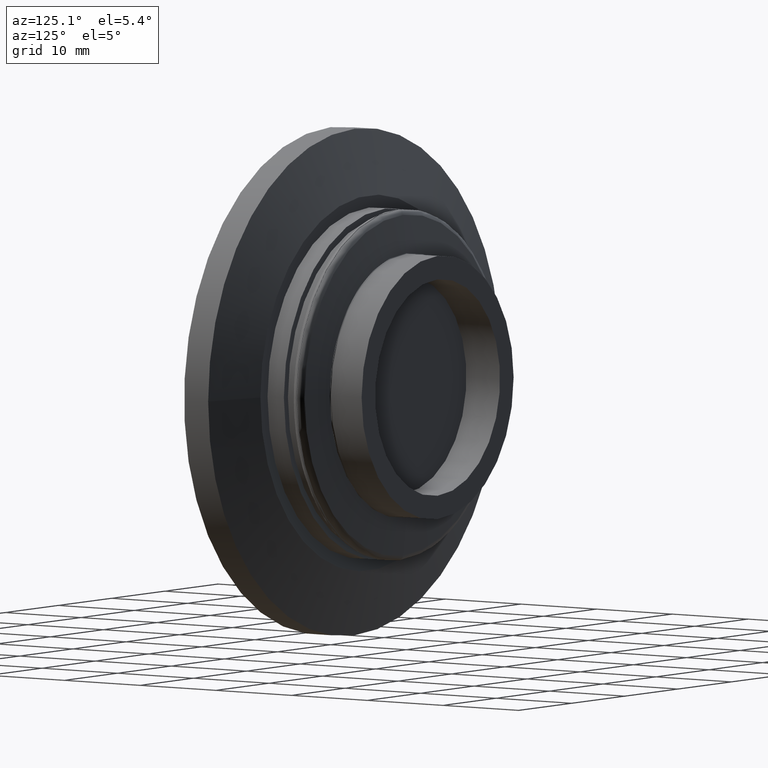
[diagram: clean part render]
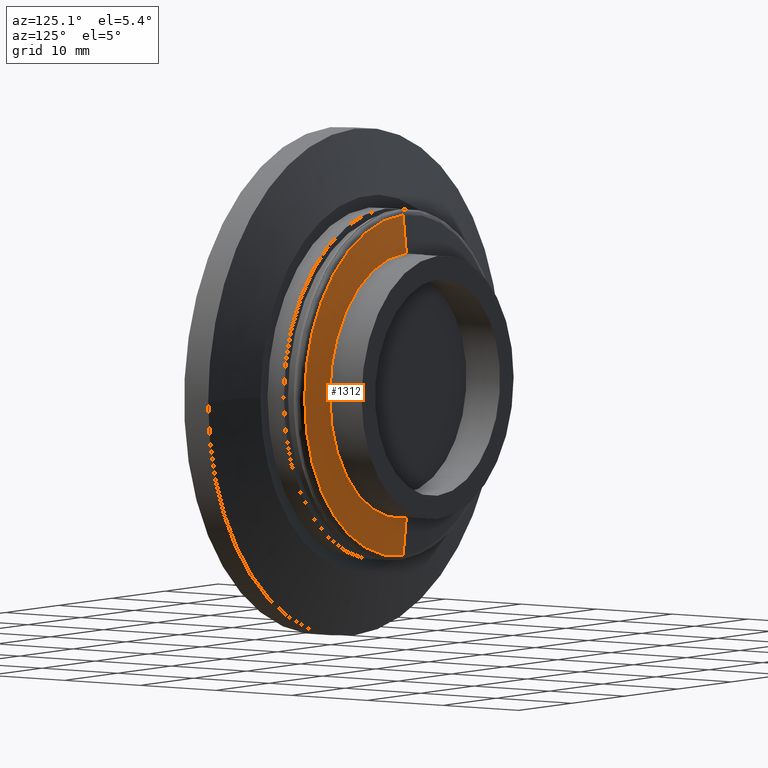
[diagram: same view with one face highlighted and labeled with its STEP entity id]
A machine part, auxiliary view. The second image highlights one B-rep face of the part: STEP entity #1312.
In plain terms, the highlighted conical surface has half-angle 84.146 deg.
Its self-contained STEP definition (entity closure, byte-faithful):
#25 = CARTESIAN_POINT ( 'NONE',  ( 0.0000000000000000000, 0.3778118173261989500, 0.0000000000000000000 ) ) ;
#43 = CARTESIAN_POINT ( 'NONE',  ( 0.0000000000000000000, 0.3778118173261989500, 0.0000000000000000000 ) ) ;
#67 = DIRECTION ( 'NONE',  ( 0.0000000000000000000, -1.000000000000000000, 0.0000000000000000000 ) ) ;
#68 = DIRECTION ( 'NONE',  ( 0.0000000000000000000, 0.0000000000000000000, -1.000000000000000000 ) ) ;
#161 = CARTESIAN_POINT ( 'NONE',  ( 7.924020191110858700E-017, 0.3944104975262508500, 0.5660920577939815300 ) ) ;
#163 = CARTESIAN_POINT ( 'NONE',  ( 0.0000000000000000000, 0.3944104975262508500, -0.5660920577939815300 ) ) ;
#164 = CARTESIAN_POINT ( 'NONE',  ( 0.0000000000000000000, 0.3778118173261989500, -0.7279986460118620400 ) ) ;
#187 = CARTESIAN_POINT ( 'NONE',  ( 8.915412116220339400E-017, 0.3778118173261989500, 0.7279986460118620400 ) ) ;
#204 = DIRECTION ( 'NONE',  ( 1.218261343924824000E-016, -0.1019855515045702300, 0.9947858801190880800 ) ) ;
#208 = CARTESIAN_POINT ( 'NONE',  ( 8.915412116220339400E-017, 0.3778118173261989500, 0.7279986460118620400 ) ) ;
#347 = DIRECTION ( 'NONE',  ( 0.0000000000000000000, 0.0000000000000000000, -1.000000000000000000 ) ) ;
#349 = DIRECTION ( 'NONE',  ( -0.0000000000000000000, -1.000000000000000000, -0.0000000000000000000 ) ) ;
#358 = AXIS2_PLACEMENT_3D ( 'NONE', #25, #349, #347 ) ;
#382 = AXIS2_PLACEMENT_3D ( 'NONE', #1214, #1213, #1212 ) ;
#402 = EDGE_CURVE ( 'NONE', #1032, #1033, #819, .T. ) ;
#421 = EDGE_CURVE ( 'NONE', #1032, #1030, #790, .T. ) ;
#475 = AXIS2_PLACEMENT_3D ( 'NONE', #43, #67, #68 ) ;
#536 = EDGE_CURVE ( 'NONE', #1033, #1029, #748, .T. ) ;
#537 = EDGE_CURVE ( 'NONE', #1030, #1029, #747, .T. ) ;
#686 = CONICAL_SURFACE ( 'NONE', #475, 0.7279986460118620400, 1.468633149806945400 ) ;
#689 = FACE_OUTER_BOUND ( 'NONE', #1002, .T. ) ;
#746 = VECTOR ( 'NONE', #204, 39.37007874015748100 ) ;
#747 = CIRCLE ( 'NONE', #358, 0.7279986460118620400 ) ;
#748 = LINE ( 'NONE', #208, #746 ) ;
#786 = VECTOR ( 'NONE', #1141, 39.37007874015748100 ) ;
#790 = LINE ( 'NONE', #1150, #786 ) ;
#819 = CIRCLE ( 'NONE', #382, 0.5660920577939815300 ) ;
#875 = ORIENTED_EDGE ( 'NONE', *, *, #402, .T. ) ;
#876 = ORIENTED_EDGE ( 'NONE', *, *, #536, .T. ) ;
#877 = ORIENTED_EDGE ( 'NONE', *, *, #537, .F. ) ;
#878 = ORIENTED_EDGE ( 'NONE', *, *, #421, .F. ) ;
#1002 = EDGE_LOOP ( 'NONE', ( #875, #876, #877, #878 ) ) ;
#1029 = VERTEX_POINT ( 'NONE', #187 ) ;
#1030 = VERTEX_POINT ( 'NONE', #164 ) ;
#1032 = VERTEX_POINT ( 'NONE', #163 ) ;
#1033 = VERTEX_POINT ( 'NONE', #161 ) ;
#1141 = DIRECTION ( 'NONE',  ( 0.0000000000000000000, -0.1019855515045702300, -0.9947858801190880800 ) ) ;
#1150 = CARTESIAN_POINT ( 'NONE',  ( 0.0000000000000000000, 0.3778118173261989500, -0.7279986460118620400 ) ) ;
#1212 = DIRECTION ( 'NONE',  ( 0.0000000000000000000, 0.0000000000000000000, -1.000000000000000000 ) ) ;
#1213 = DIRECTION ( 'NONE',  ( -0.0000000000000000000, -1.000000000000000000, -0.0000000000000000000 ) ) ;
#1214 = CARTESIAN_POINT ( 'NONE',  ( 0.0000000000000000000, 0.3944104975262508500, 0.0000000000000000000 ) ) ;
#1312 = ADVANCED_FACE ( 'NONE', ( #689 ), #686, .T. ) ;